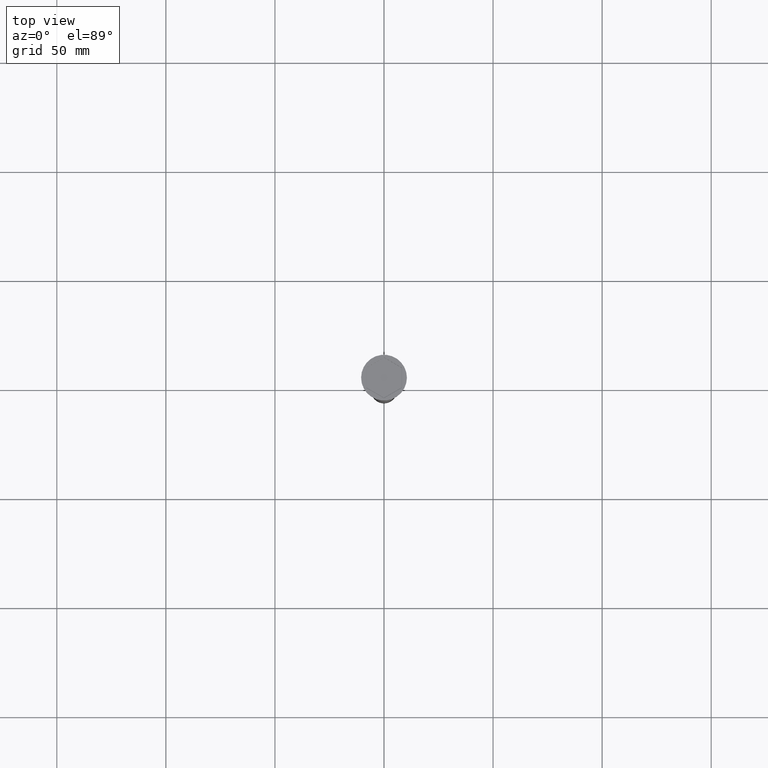
[diagram: clean part render]
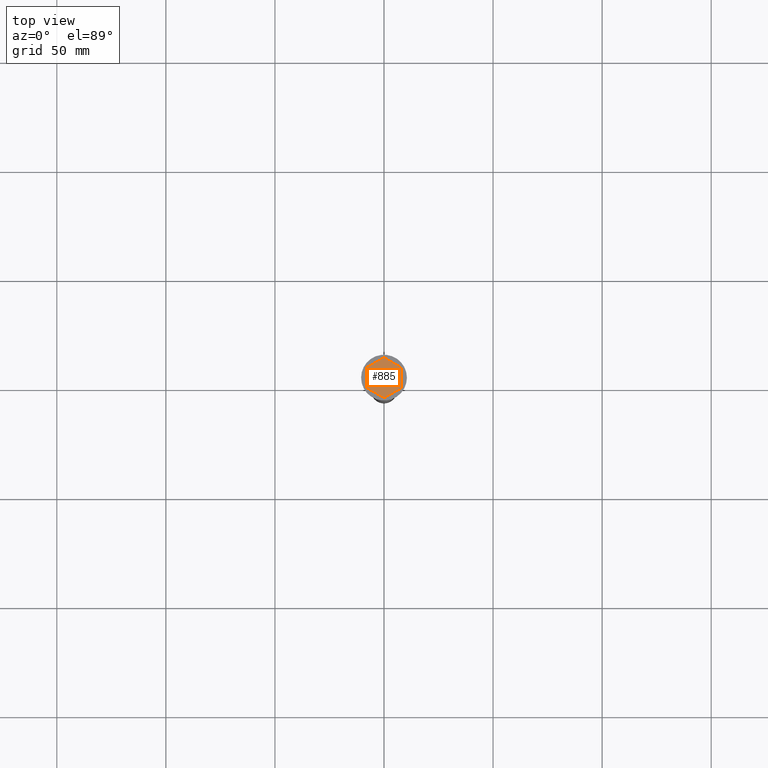
[diagram: same view with one face highlighted and labeled with its STEP entity id]
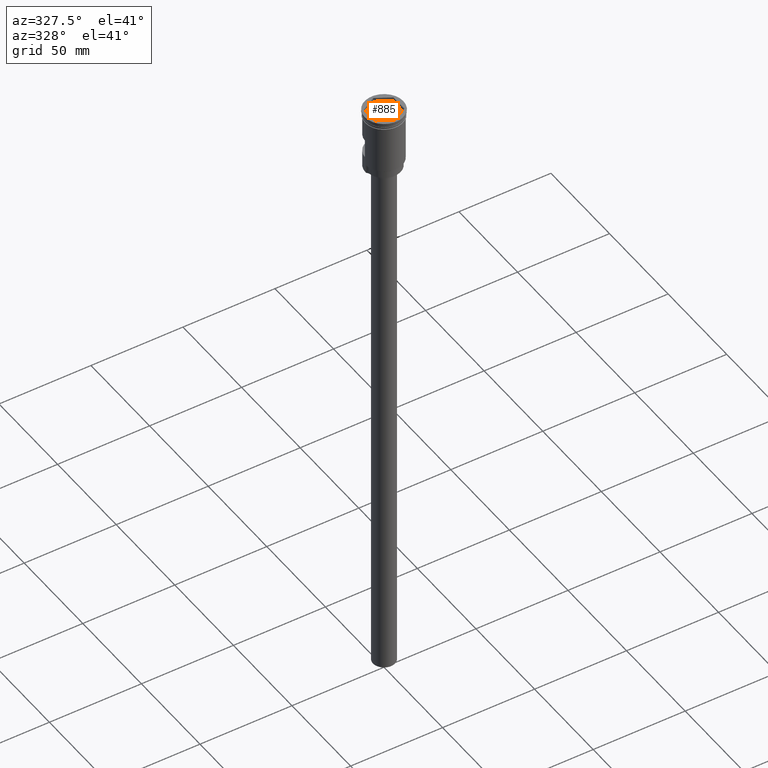
[diagram: same view with one face highlighted and labeled with its STEP entity id]
A machine part, top view. The second image highlights one B-rep face of the part: STEP entity #885.
A second angle (auxiliary view) of the same face is appended — the face is thin or edge-on in the first view.
In plain terms, the highlighted planar face has unit normal (-0, 0, 1).
Its self-contained STEP definition (entity closure, byte-faithful):
#19 = ORIENTED_EDGE ( 'NONE', *, *, #708, .T. ) ;
#32 = CARTESIAN_POINT ( 'NONE',  ( -8.000000000000000000, 0.000000000000000000, -2.000000000000000000 ) ) ;
#52 = EDGE_CURVE ( 'NONE', #1371, #1067, #649, .T. ) ;
#173 = CARTESIAN_POINT ( 'NONE',  ( -3.999999999999998224, 6.928203230275506108, -2.000000000000000000 ) ) ;
#178 = ORIENTED_EDGE ( 'NONE', *, *, #52, .T. ) ;
#186 = VERTEX_POINT ( 'NONE', #1539 ) ;
#202 = DIRECTION ( 'NONE',  ( 0.000000000000000000, 1.000000000000000000, -0.000000000000000000 ) ) ;
#206 = LINE ( 'NONE', #1408, #925 ) ;
#236 = VECTOR ( 'NONE', #303, 999.9999999999998863 ) ;
#280 = VERTEX_POINT ( 'NONE', #687 ) ;
#303 = DIRECTION ( 'NONE',  ( -0.8660254037844387076, -0.5000000000000001110, 0.000000000000000000 ) ) ;
#332 = DIRECTION ( 'NONE',  ( 0.8660254037844387076, 0.4999999999999999445, 0.000000000000000000 ) ) ;
#341 = VECTOR ( 'NONE', #1595, 999.9999999999998863 ) ;
#342 = LINE ( 'NONE', #577, #1164 ) ;
#370 = CARTESIAN_POINT ( 'NONE',  ( 8.000000000000000000, -4.618802153517008513, -2.000000000000000000 ) ) ;
#385 = VERTEX_POINT ( 'NONE', #370 ) ;
#406 = EDGE_CURVE ( 'NONE', #280, #1104, #1106, .T. ) ;
#416 = CARTESIAN_POINT ( 'NONE',  ( 0.000000000000000000, 0.000000000000000000, -2.000000000000000000 ) ) ;
#510 = EDGE_LOOP ( 'NONE', ( #702, #609, #178, #1003, #1020, #19 ) ) ;
#577 = CARTESIAN_POINT ( 'NONE',  ( 8.000000000000000000, 0.000000000000000000, -2.000000000000000000 ) ) ;
#609 = ORIENTED_EDGE ( 'NONE', *, *, #998, .T. ) ;
#619 = PLANE ( 'NONE',  #954 ) ;
#649 = LINE ( 'NONE', #32, #1394 ) ;
#672 = CARTESIAN_POINT ( 'NONE',  ( -8.000000000000000000, 4.618802153517002296, -2.000000000000000000 ) ) ;
#687 = CARTESIAN_POINT ( 'NONE',  ( 8.000000000000000000, 4.618802153517003184, -2.000000000000000000 ) ) ;
#694 = LINE ( 'NONE', #173, #236 ) ;
#702 = ORIENTED_EDGE ( 'NONE', *, *, #406, .T. ) ;
#708 = EDGE_CURVE ( 'NONE', #385, #280, #342, .T. ) ;
#737 = VECTOR ( 'NONE', #332, 999.9999999999998863 ) ;
#799 = DIRECTION ( 'NONE',  ( 0.8660254037844387076, -0.4999999999999999445, 0.000000000000000000 ) ) ;
#860 = CARTESIAN_POINT ( 'NONE',  ( 3.999999999999998224, 6.928203230275506108, -2.000000000000000000 ) ) ;
#885 = ADVANCED_FACE ( 'NONE', ( #1129 ), #619, .T. ) ;
#919 = LINE ( 'NONE', #1047, #737 ) ;
#925 = VECTOR ( 'NONE', #799, 999.9999999999998863 ) ;
#954 = AXIS2_PLACEMENT_3D ( 'NONE', #416, #1122, #1137 ) ;
#962 = EDGE_CURVE ( 'NONE', #186, #385, #919, .T. ) ;
#998 = EDGE_CURVE ( 'NONE', #1104, #1371, #694, .T. ) ;
#1003 = ORIENTED_EDGE ( 'NONE', *, *, #1407, .T. ) ;
#1020 = ORIENTED_EDGE ( 'NONE', *, *, #962, .T. ) ;
#1043 = DIRECTION ( 'NONE',  ( 0.000000000000000000, -1.000000000000000000, 0.000000000000000000 ) ) ;
#1047 = CARTESIAN_POINT ( 'NONE',  ( 4.000000000000000000, -6.928203230275510549, -2.000000000000000000 ) ) ;
#1067 = VERTEX_POINT ( 'NONE', #1542 ) ;
#1104 = VERTEX_POINT ( 'NONE', #1232 ) ;
#1106 = LINE ( 'NONE', #860, #341 ) ;
#1122 = DIRECTION ( 'NONE',  ( -0.000000000000000000, 0.000000000000000000, 1.000000000000000000 ) ) ;
#1129 = FACE_OUTER_BOUND ( 'NONE', #510, .T. ) ;
#1137 = DIRECTION ( 'NONE',  ( 1.000000000000000000, 0.000000000000000000, 0.000000000000000000 ) ) ;
#1164 = VECTOR ( 'NONE', #202, 1000.000000000000000 ) ;
#1232 = CARTESIAN_POINT ( 'NONE',  ( 0.000000000000000000, 9.237604307034009921, -2.000000000000000000 ) ) ;
#1371 = VERTEX_POINT ( 'NONE', #672 ) ;
#1394 = VECTOR ( 'NONE', #1043, 1000.000000000000000 ) ;
#1407 = EDGE_CURVE ( 'NONE', #1067, #186, #206, .T. ) ;
#1408 = CARTESIAN_POINT ( 'NONE',  ( -4.000000000000000000, -6.928203230275510549, -2.000000000000000000 ) ) ;
#1539 = CARTESIAN_POINT ( 'NONE',  ( 0.000000000000000000, -9.237604307034013473, -2.000000000000000000 ) ) ;
#1542 = CARTESIAN_POINT ( 'NONE',  ( -8.000000000000000000, -4.618802153517008513, -2.000000000000000000 ) ) ;
#1595 = DIRECTION ( 'NONE',  ( -0.8660254037844387076, 0.5000000000000001110, 0.000000000000000000 ) ) ;